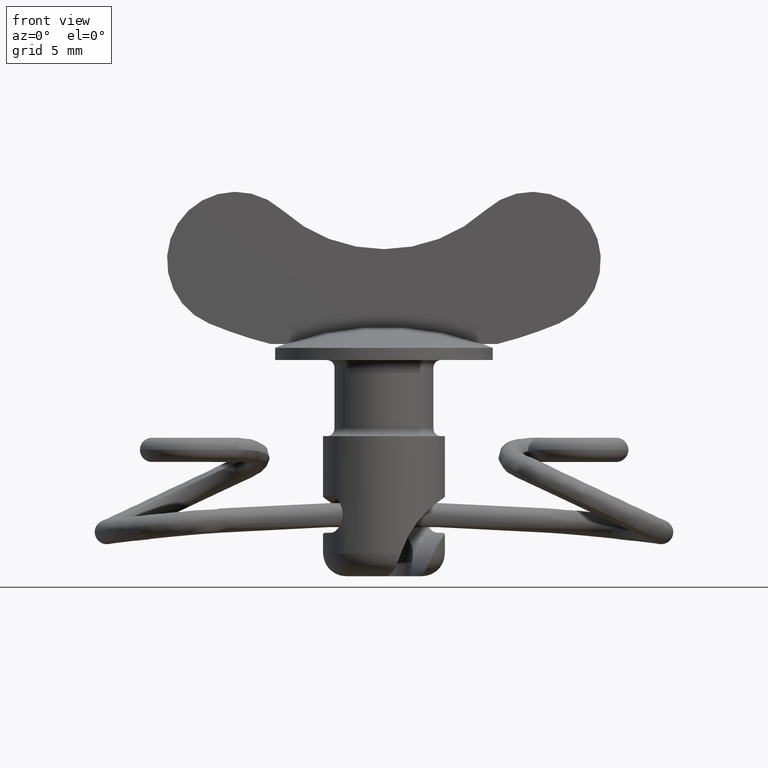
[diagram: clean part render]
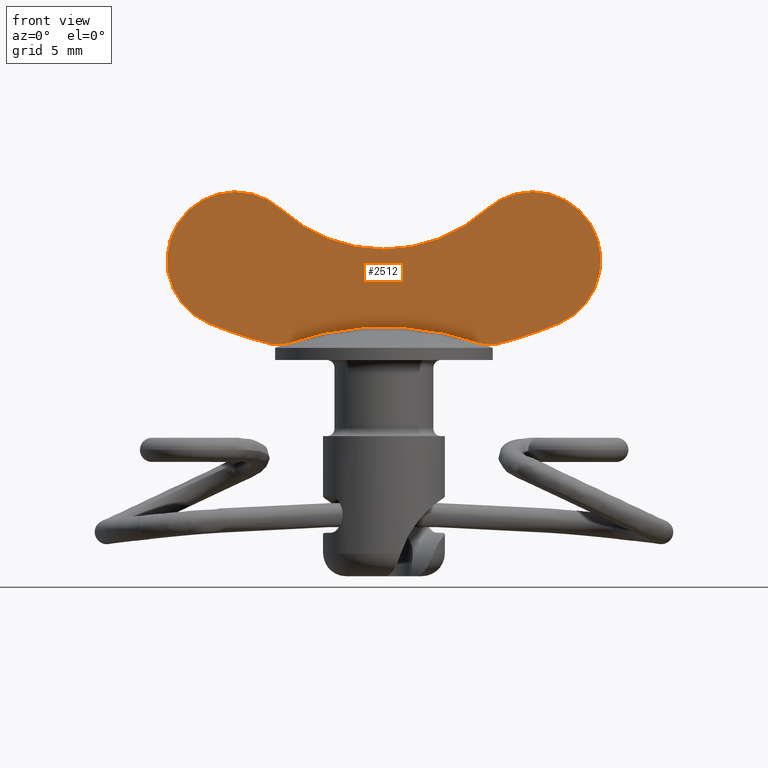
[diagram: same view with one face highlighted and labeled with its STEP entity id]
A machine part, front view. The second image highlights one B-rep face of the part: STEP entity #2512.
In plain terms, the highlighted planar face has unit normal (0, 1, 0).
Its self-contained STEP definition (entity closure, byte-faithful):
#6 = AXIS2_PLACEMENT_3D ( 'NONE', #5792, #1576, #6500 ) ;
#85 = AXIS2_PLACEMENT_3D ( 'NONE', #4812, #588, #5520 ) ;
#189 = CIRCLE ( 'NONE', #6317, 4.500000012274921500 ) ;
#226 = CARTESIAN_POINT ( 'NONE',  ( -11.47059384407987500, -0.8000000000000000400, 12.53599560607598900 ) ) ;
#588 = DIRECTION ( 'NONE',  ( 0.0000000000000000000, 1.000000000000000000, 0.0000000000000000000 ) ) ;
#853 = CIRCLE ( 'NONE', #3492, 10.00000001227473900 ) ;
#1213 = VERTEX_POINT ( 'NONE', #7727 ) ;
#1576 = DIRECTION ( 'NONE',  ( 0.0000000000000000000, 1.000000000000000000, 0.0000000000000000000 ) ) ;
#1750 = EDGE_CURVE ( 'NONE', #3857, #2194, #5081, .T. ) ;
#1823 = DIRECTION ( 'NONE',  ( -1.000000000000000000, 0.0000000000000000000, 0.0000000000000000000 ) ) ;
#1829 = CARTESIAN_POINT ( 'NONE',  ( -5.635136423459696800E-006, -0.8000000000000000400, 17.42661363855789600 ) ) ;
#1945 = CARTESIAN_POINT ( 'NONE',  ( 6.452984461875961300, -0.8000000000000000400, 11.19406826094162400 ) ) ;
#1980 = CARTESIAN_POINT ( 'NONE',  ( -4.431857276998574200E-007, -0.8000000000000000400, 40.25648363028319200 ) ) ;
#2019 = DIRECTION ( 'NONE',  ( 0.0000000000000000000, 1.000000000000000000, 0.0000000000000000000 ) ) ;
#2030 = EDGE_CURVE ( 'NONE', #8921, #2194, #2739, .T. ) ;
#2031 = EDGE_CURVE ( 'NONE', #8325, #1213, #4632, .T. ) ;
#2065 = ORIENTED_EDGE ( 'NONE', *, *, #8511, .F. ) ;
#2194 = VERTEX_POINT ( 'NONE', #1945 ) ;
#2265 = CARTESIAN_POINT ( 'NONE',  ( 7.441490738038059000, -0.8000000000000000400, 11.19406826094162000 ) ) ;
#2346 = EDGE_CURVE ( 'NONE', #3933, #4087, #4183, .T. ) ;
#2512 = ADVANCED_FACE ( 'NONE', ( #3977 ), #7648, .F. ) ;
#2681 = DIRECTION ( 'NONE',  ( 0.0000000000000000000, 0.0000000000000000000, 1.000000000000000000 ) ) ;
#2739 = CIRCLE ( 'NONE', #8782, 18.94114880740162800 ) ;
#3006 = DIRECTION ( 'NONE',  ( 0.0000000000000000000, 1.000000000000000000, 0.0000000000000000000 ) ) ;
#3059 = CIRCLE ( 'NONE', #6, 10.00000001227473900 ) ;
#3310 = ORIENTED_EDGE ( 'NONE', *, *, #2031, .F. ) ;
#3388 = AXIS2_PLACEMENT_3D ( 'NONE', #6233, #2019, #6958 ) ;
#3400 = DIRECTION ( 'NONE',  ( 0.0000000000000000000, 1.000000000000000000, 0.0000000000000000000 ) ) ;
#3492 = AXIS2_PLACEMENT_3D ( 'NONE', #7779, #3551, #8488 ) ;
#3535 = ORIENTED_EDGE ( 'NONE', *, *, #2346, .F. ) ;
#3551 = DIRECTION ( 'NONE',  ( 0.0000000000000000000, 1.000000000000000000, 0.0000000000000000000 ) ) ;
#3613 = DIRECTION ( 'NONE',  ( -1.000000000000000000, 0.0000000000000000000, 0.0000000000000000000 ) ) ;
#3846 = CARTESIAN_POINT ( 'NONE',  ( 6.724131997629919000, -0.8000000000000000400, 20.02485890340211600 ) ) ;
#3857 = VERTEX_POINT ( 'NONE', #2265 ) ;
#3933 = VERTEX_POINT ( 'NONE', #5102 ) ;
#3977 = FACE_OUTER_BOUND ( 'NONE', #5101, .T. ) ;
#4005 = ORIENTED_EDGE ( 'NONE', *, *, #1750, .F. ) ;
#4087 = VERTEX_POINT ( 'NONE', #226 ) ;
#4130 = DIRECTION ( 'NONE',  ( 0.0000000000000000000, 1.000000000000000000, 0.0000000000000000000 ) ) ;
#4183 = CIRCLE ( 'NONE', #3388, 29.99999948781418300 ) ;
#4632 = CIRCLE ( 'NONE', #85, 4.500000512185756000 ) ;
#4812 = CARTESIAN_POINT ( 'NONE',  ( 9.749994273061357600, -0.8000000000000000400, 16.69406889203950300 ) ) ;
#4945 = ORIENTED_EDGE ( 'NONE', *, *, #6399, .F. ) ;
#5081 = LINE ( 'NONE', #6034, #5303 ) ;
#5101 = EDGE_LOOP ( 'NONE', ( #5360, #5436, #4005, #2065, #3310, #7423, #8077, #4945, #3535 ) ) ;
#5102 = CARTESIAN_POINT ( 'NONE',  ( -7.441504469168013000, -0.8000000000000000400, 11.19406826094162200 ) ) ;
#5209 = VERTEX_POINT ( 'NONE', #1829 ) ;
#5303 = VECTOR ( 'NONE', #1823, 1000.000000000000000 ) ;
#5360 = ORIENTED_EDGE ( 'NONE', *, *, #6277, .F. ) ;
#5436 = ORIENTED_EDGE ( 'NONE', *, *, #2030, .T. ) ;
#5520 = DIRECTION ( 'NONE',  ( 0.0000000000000000000, 0.0000000000000000000, 1.000000000000000000 ) ) ;
#5780 = CIRCLE ( 'NONE', #6275, 29.99999630167263800 ) ;
#5792 = CARTESIAN_POINT ( 'NONE',  ( -5.635136423459696800E-006, -0.8000000000000000400, 27.42661365083263200 ) ) ;
#6000 = EDGE_CURVE ( 'NONE', #5209, #9126, #853, .T. ) ;
#6034 = CARTESIAN_POINT ( 'NONE',  ( 7.441490738038061700, -0.8000000000000000400, 11.19406826094162200 ) ) ;
#6233 = CARTESIAN_POINT ( 'NONE',  ( -4.431857276998574200E-007, -0.8000000000000000400, 40.25648363028319200 ) ) ;
#6275 = AXIS2_PLACEMENT_3D ( 'NONE', #1980, #6913, #2681 ) ;
#6277 = EDGE_CURVE ( 'NONE', #8921, #3933, #7921, .T. ) ;
#6317 = AXIS2_PLACEMENT_3D ( 'NONE', #7233, #3006, #7944 ) ;
#6399 = EDGE_CURVE ( 'NONE', #4087, #9126, #189, .T. ) ;
#6500 = DIRECTION ( 'NONE',  ( 0.0000000000000000000, 0.0000000000000000000, 1.000000000000000000 ) ) ;
#6913 = DIRECTION ( 'NONE',  ( 0.0000000000000000000, 1.000000000000000000, 0.0000000000000000000 ) ) ;
#6914 = EDGE_CURVE ( 'NONE', #8325, #5209, #3059, .T. ) ;
#6958 = DIRECTION ( 'NONE',  ( 0.0000000000000000000, 0.0000000000000000000, 1.000000000000000000 ) ) ;
#7165 = CARTESIAN_POINT ( 'NONE',  ( -6.452984461875964900, -0.8000000000000000400, 11.19406826094162400 ) ) ;
#7233 = CARTESIAN_POINT ( 'NONE',  ( -9.750004799877022100, -0.8000000000000000400, 16.69406889203950300 ) ) ;
#7423 = ORIENTED_EDGE ( 'NONE', *, *, #6914, .T. ) ;
#7630 = CARTESIAN_POINT ( 'NONE',  ( -1.734723475976807100E-015, -0.8000000000000000400, -6.613966714285698600 ) ) ;
#7646 = AXIS2_PLACEMENT_3D ( 'NONE', #8351, #4130, #9063 ) ;
#7648 = PLANE ( 'NONE',  #7646 ) ;
#7680 = VECTOR ( 'NONE', #3613, 1000.000000000000000 ) ;
#7727 = CARTESIAN_POINT ( 'NONE',  ( 11.47058205586440700, -0.8000000000000000400, 12.53599454309611800 ) ) ;
#7779 = CARTESIAN_POINT ( 'NONE',  ( -5.635136423459696800E-006, -0.8000000000000000400, 27.42661365083263200 ) ) ;
#7846 = CARTESIAN_POINT ( 'NONE',  ( 7.441490738038061700, -0.8000000000000000400, 11.19406826094162200 ) ) ;
#7921 = LINE ( 'NONE', #7846, #7680 ) ;
#7944 = DIRECTION ( 'NONE',  ( 0.0000000000000000000, 0.0000000000000000000, 1.000000000000000000 ) ) ;
#8077 = ORIENTED_EDGE ( 'NONE', *, *, #6000, .T. ) ;
#8325 = VERTEX_POINT ( 'NONE', #3846 ) ;
#8330 = DIRECTION ( 'NONE',  ( 0.0000000000000000000, 0.0000000000000000000, 1.000000000000000000 ) ) ;
#8351 = CARTESIAN_POINT ( 'NONE',  ( -4.431857276998574200E-007, -0.8000000000000000400, 40.25648363028319200 ) ) ;
#8488 = DIRECTION ( 'NONE',  ( 0.0000000000000000000, 0.0000000000000000000, 1.000000000000000000 ) ) ;
#8511 = EDGE_CURVE ( 'NONE', #1213, #3857, #5780, .T. ) ;
#8717 = CARTESIAN_POINT ( 'NONE',  ( -6.724142986999138000, -0.8000000000000000400, 20.02485864821470700 ) ) ;
#8782 = AXIS2_PLACEMENT_3D ( 'NONE', #7630, #3400, #8330 ) ;
#8921 = VERTEX_POINT ( 'NONE', #7165 ) ;
#9063 = DIRECTION ( 'NONE',  ( 0.0000000000000000000, -0.0000000000000000000, 1.000000000000000000 ) ) ;
#9126 = VERTEX_POINT ( 'NONE', #8717 ) ;